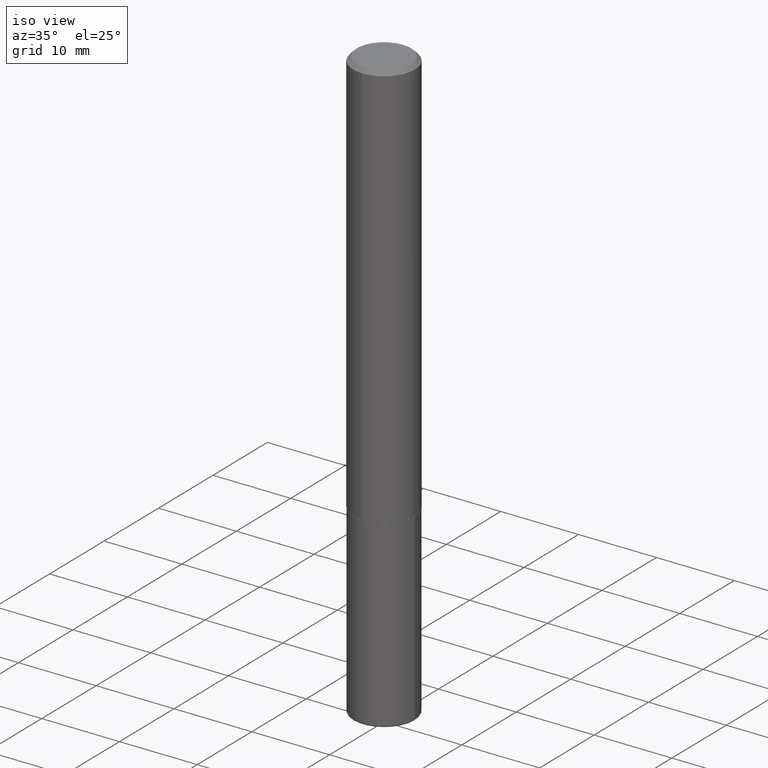
[diagram: clean part render]
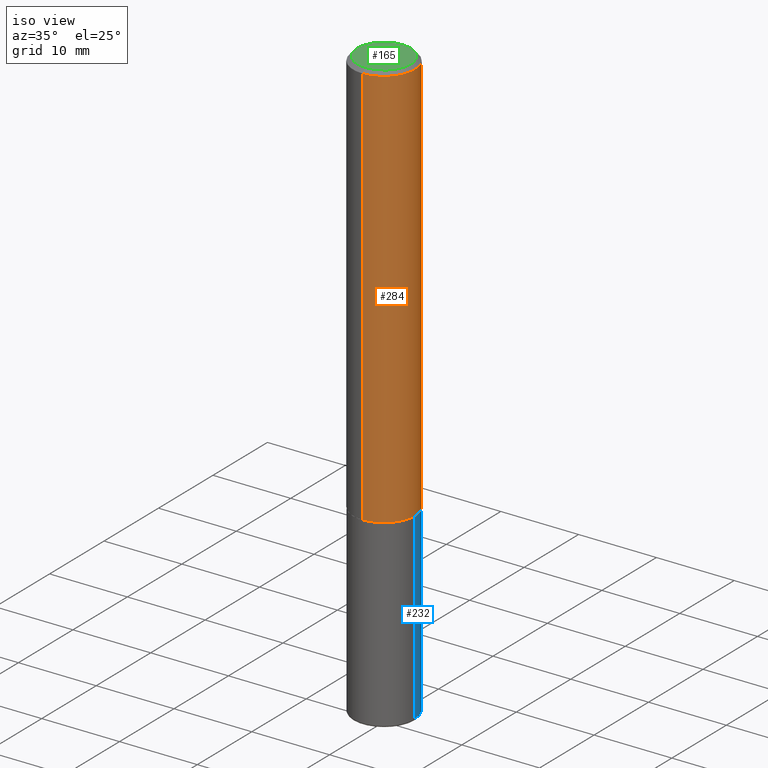
[diagram: same view with three faces highlighted in distinct colors, each labeled with its STEP entity id]
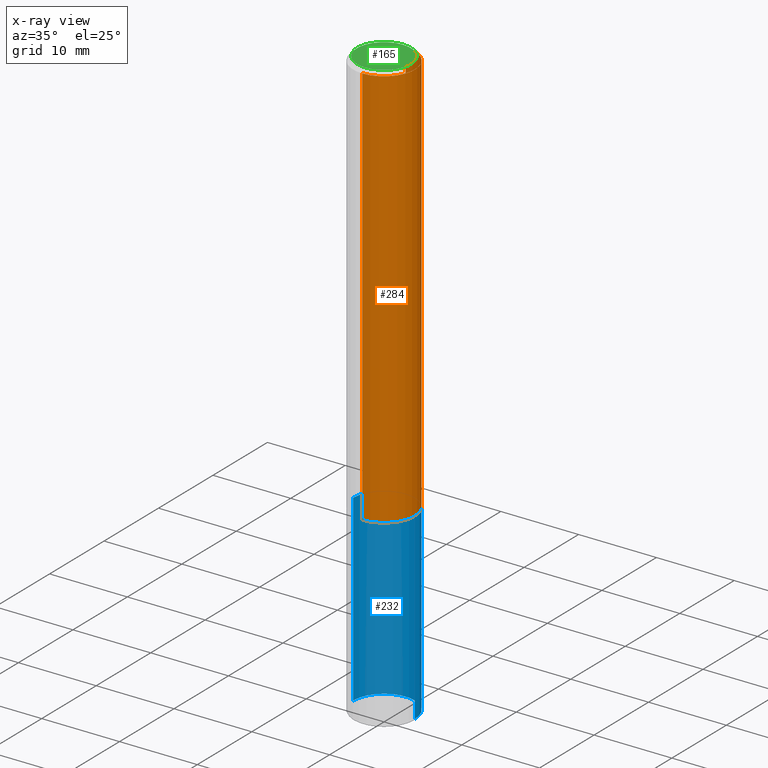
[diagram: x-ray of the same camera — body ghosted, the three highlighted faces saturated]
A machine part, iso view with three faces highlighted in distinct colors.
The next image is the same camera in x-ray (body ghosted, the three faces saturated) — at least one of them is partly hidden behind the body in this view.
Their STEP definitions:

[orange] entity #284 — the highlighted cylindrical surface (partial cylindrical patch) has radius 3.9688 mm, axis along (-0, 0, 1).
#1 = ORIENTED_EDGE ( 'NONE', *, *, #391, .T. ) ;
#15 = CARTESIAN_POINT ( 'NONE',  ( -1.091087918388479962E-15, -0.1562500000000001388, 5.456094630612559989E-16 ) ) ;
#25 = CARTESIAN_POINT ( 'NONE',  ( 1.091087918388479568E-15, 0.1562499999999999445, -0.02000000000000057981 ) ) ;
#28 = DIRECTION ( 'NONE',  ( -6.982962677686265922E-15, -1.000000000000000000, 3.496765431890250609E-15 ) ) ;
#32 = CARTESIAN_POINT ( 'NONE',  ( 1.110223024625157329E-15, 0.1562500000000001388, -5.456094630612559989E-16 ) ) ;
#37 = EDGE_CURVE ( 'NONE', #273, #378, #66, .T. ) ;
#59 = EDGE_CURVE ( 'NONE', #279, #378, #341, .T. ) ;
#62 = VECTOR ( 'NONE', #274, 39.37007874015748143 ) ;
#66 = LINE ( 'NONE', #32, #354 ) ;
#69 = DIRECTION ( 'NONE',  ( -6.982962677686265133E-15, -1.000000000000000000, 3.496765431890256920E-15 ) ) ;
#70 = CARTESIAN_POINT ( 'NONE',  ( 0.000000000000000000, 0.000000000000000000, 0.000000000000000000 ) ) ;
#77 = AXIS2_PLACEMENT_3D ( 'NONE', #372, #182, #28 ) ;
#105 = AXIS2_PLACEMENT_3D ( 'NONE', #70, #377, #264 ) ;
#123 = AXIS2_PLACEMENT_3D ( 'NONE', #227, #350, #69 ) ;
#160 = CYLINDRICAL_SURFACE ( 'NONE', #105, 0.1562500000000001388 ) ;
#175 = ORIENTED_EDGE ( 'NONE', *, *, #37, .T. ) ;
#182 = DIRECTION ( 'NONE',  ( -2.445176063107630933E-29, 3.491900563592034843E-15, 1.000000000000000000 ) ) ;
#183 = LINE ( 'NONE', #15, #62 ) ;
#185 = ORIENTED_EDGE ( 'NONE', *, *, #59, .F. ) ;
#202 = EDGE_CURVE ( 'NONE', #248, #279, #183, .T. ) ;
#219 = EDGE_LOOP ( 'NONE', ( #1, #175, #185, #343 ) ) ;
#227 = CARTESIAN_POINT ( 'NONE',  ( 4.890352126215269679E-31, -6.983801127184080238E-17, -0.02000000000000003511 ) ) ;
#235 = FACE_OUTER_BOUND ( 'NONE', #219, .T. ) ;
#248 = VERTEX_POINT ( 'NONE', #312 ) ;
#264 = DIRECTION ( 'NONE',  ( -6.982962677686265922E-15, -1.000000000000000000, 3.491900563592035238E-15 ) ) ;
#269 = CARTESIAN_POINT ( 'NONE',  ( -1.071952812151801215E-15, -0.1562500000000000833, -0.01999999999999948694 ) ) ;
#273 = VERTEX_POINT ( 'NONE', #402 ) ;
#274 = DIRECTION ( 'NONE',  ( -2.445176063107631214E-29, 3.491900563592034843E-15, 1.000000000000000000 ) ) ;
#279 = VERTEX_POINT ( 'NONE', #269 ) ;
#284 = ADVANCED_FACE ( 'NONE', ( #235 ), #160, .T. ) ;
#291 = DIRECTION ( 'NONE',  ( -2.445176063107631214E-29, 3.491900563592034843E-15, 1.000000000000000000 ) ) ;
#312 = CARTESIAN_POINT ( 'NONE',  ( -1.091087918388430659E-15, -0.1562500000000074940, -2.061499999999999666 ) ) ;
#341 = CIRCLE ( 'NONE', #123, 0.1562500000000000000 ) ;
#343 = ORIENTED_EDGE ( 'NONE', *, *, #202, .F. ) ;
#350 = DIRECTION ( 'NONE',  ( -2.445176063107630933E-29, 3.491900563592034843E-15, 1.000000000000000000 ) ) ;
#354 = VECTOR ( 'NONE', #291, 39.37007874015748143 ) ;
#372 = CARTESIAN_POINT ( 'NONE',  ( 5.040730454096381281E-29, -7.198553011844980434E-15, -2.061500000000000110 ) ) ;
#377 = DIRECTION ( 'NONE',  ( -2.445176063107630933E-29, 3.491900563592034843E-15, 1.000000000000000000 ) ) ;
#378 = VERTEX_POINT ( 'NONE', #25 ) ;
#391 = EDGE_CURVE ( 'NONE', #248, #273, #412, .T. ) ;
#402 = CARTESIAN_POINT ( 'NONE',  ( 1.110223024625183362E-15, 0.1562499999999930611, -2.061500000000000554 ) ) ;
#412 = CIRCLE ( 'NONE', #77, 0.1562500000000002776 ) ;

[blue] entity #232 — the highlighted cylindrical surface (partial cylindrical patch) has radius 3.9688 mm, axis along (-0, 0, 1).
#10 = ORIENTED_EDGE ( 'NONE', *, *, #179, .T. ) ;
#11 = CARTESIAN_POINT ( 'NONE',  ( -0.1562500000000000000, -7.710131707627340889E-15, -2.062500000000000000 ) ) ;
#12 = CIRCLE ( 'NONE', #74, 0.1562500000000000000 ) ;
#26 = VERTEX_POINT ( 'NONE', #158 ) ;
#45 = FACE_OUTER_BOUND ( 'NONE', #146, .T. ) ;
#53 = ORIENTED_EDGE ( 'NONE', *, *, #298, .F. ) ;
#57 = CYLINDRICAL_SURFACE ( 'NONE', #327, 0.1562500000000000000 ) ;
#74 = AXIS2_PLACEMENT_3D ( 'NONE', #338, #401, #270 ) ;
#87 = CARTESIAN_POINT ( 'NONE',  ( 0.1562500000000000000, -1.091087918388479174E-15, 7.619026212181150377E-30 ) ) ;
#120 = CARTESIAN_POINT ( 'NONE',  ( -0.1562500000000000000, 1.110223024625156540E-15, -7.685836078523291160E-30 ) ) ;
#127 = DIRECTION ( 'NONE',  ( -2.445468806185136597E-29, 3.491481338843145583E-15, 1.000000000000000000 ) ) ;
#132 = CARTESIAN_POINT ( 'NONE',  ( 5.043779412756844791E-29, -7.201180261363988578E-15, -2.062500000000000000 ) ) ;
#133 = CARTESIAN_POINT ( 'NONE',  ( 0.1562500000000000000, -8.292268179752468540E-15, -2.062500000000000000 ) ) ;
#135 = EDGE_CURVE ( 'NONE', #26, #282, #217, .T. ) ;
#146 = EDGE_LOOP ( 'NONE', ( #10, #150, #53, #172 ) ) ;
#148 = EDGE_CURVE ( 'NONE', #403, #151, #174, .T. ) ;
#150 = ORIENTED_EDGE ( 'NONE', *, *, #148, .T. ) ;
#151 = VERTEX_POINT ( 'NONE', #11 ) ;
#158 = CARTESIAN_POINT ( 'NONE',  ( 0.1562500000000000278, -1.153061712152948940E-14, -2.990000000000000657 ) ) ;
#172 = ORIENTED_EDGE ( 'NONE', *, *, #135, .F. ) ;
#174 = LINE ( 'NONE', #120, #352 ) ;
#176 = DIRECTION ( 'NONE',  ( -2.445468806185136877E-29, 3.491481338843145188E-15, 1.000000000000000000 ) ) ;
#179 = EDGE_CURVE ( 'NONE', #26, #403, #12, .T. ) ;
#184 = CARTESIAN_POINT ( 'NONE',  ( 0.000000000000000000, 0.000000000000000000, 0.000000000000000000 ) ) ;
#217 = LINE ( 'NONE', #87, #245 ) ;
#225 = CIRCLE ( 'NONE', #310, 0.1562500000000000000 ) ;
#232 = ADVANCED_FACE ( 'NONE', ( #45 ), #57, .T. ) ;
#245 = VECTOR ( 'NONE', #176, 39.37007874015748143 ) ;
#250 = DIRECTION ( 'NONE',  ( -2.445468806185136597E-29, 3.491481338843145583E-15, 1.000000000000000000 ) ) ;
#259 = DIRECTION ( 'NONE',  ( 1.000000000000000000, -6.982962677686269077E-15, 0.000000000000000000 ) ) ;
#270 = DIRECTION ( 'NONE',  ( 1.000000000000000000, -6.982962677686262766E-15, 0.000000000000000000 ) ) ;
#277 = CARTESIAN_POINT ( 'NONE',  ( -0.1562500000000000278, -9.329306178515851319E-15, -2.990000000000000657 ) ) ;
#280 = DIRECTION ( 'NONE',  ( -2.445468806185136877E-29, 3.491481338843145188E-15, 1.000000000000000000 ) ) ;
#282 = VERTEX_POINT ( 'NONE', #133 ) ;
#298 = EDGE_CURVE ( 'NONE', #282, #151, #225, .T. ) ;
#310 = AXIS2_PLACEMENT_3D ( 'NONE', #132, #127, #259 ) ;
#327 = AXIS2_PLACEMENT_3D ( 'NONE', #184, #250, #371 ) ;
#338 = CARTESIAN_POINT ( 'NONE',  ( 7.311951730493559366E-29, -1.043952920314100786E-14, -2.990000000000000657 ) ) ;
#352 = VECTOR ( 'NONE', #280, 39.37007874015748143 ) ;
#371 = DIRECTION ( 'NONE',  ( 1.000000000000000000, -6.982962677686266711E-15, 4.876176775795936353E-29 ) ) ;
#401 = DIRECTION ( 'NONE',  ( -2.445468806185136597E-29, 3.491481338843145583E-15, 1.000000000000000000 ) ) ;
#403 = VERTEX_POINT ( 'NONE', #277 ) ;

[green] entity #165 — the highlighted planar face has unit normal (0, -0, -1).
#3 = CARTESIAN_POINT ( 'NONE',  ( 2.190428889620163364E-45, -3.128101894001013777E-31, -8.958164292007245599E-17 ) ) ;
#21 = VERTEX_POINT ( 'NONE', #384 ) ;
#58 = CIRCLE ( 'NONE', #207, 0.1362500000000001210 ) ;
#61 = DIRECTION ( 'NONE',  ( -6.982962677686265922E-15, -1.000000000000000000, 3.491900563592034843E-15 ) ) ;
#89 = DIRECTION ( 'NONE',  ( 2.445176063107630653E-29, -3.491900563592034843E-15, -1.000000000000000000 ) ) ;
#102 = VERTEX_POINT ( 'NONE', #332 ) ;
#104 = AXIS2_PLACEMENT_3D ( 'NONE', #405, #89, #144 ) ;
#119 = CIRCLE ( 'NONE', #288, 0.1362500000000001210 ) ;
#122 = DIRECTION ( 'NONE',  ( -2.445176063107630933E-29, 3.491900563592034843E-15, 1.000000000000000000 ) ) ;
#139 = FACE_OUTER_BOUND ( 'NONE', #221, .T. ) ;
#143 = CARTESIAN_POINT ( 'NONE',  ( 2.190428889620163364E-45, -3.128101894001013777E-31, -8.958164292007245599E-17 ) ) ;
#144 = DIRECTION ( 'NONE',  ( 6.982962677686265922E-15, 1.000000000000000000, -3.491900563592034843E-15 ) ) ;
#162 = DIRECTION ( 'NONE',  ( -6.982962677686265922E-15, -1.000000000000000000, 3.491900563592034843E-15 ) ) ;
#165 = ADVANCED_FACE ( 'NONE', ( #139 ), #276, .F. ) ;
#207 = AXIS2_PLACEMENT_3D ( 'NONE', #3, #122, #61 ) ;
#208 = ORIENTED_EDGE ( 'NONE', *, *, #340, .T. ) ;
#213 = EDGE_CURVE ( 'NONE', #102, #21, #119, .T. ) ;
#221 = EDGE_LOOP ( 'NONE', ( #380, #208 ) ) ;
#276 = PLANE ( 'NONE',  #104 ) ;
#288 = AXIS2_PLACEMENT_3D ( 'NONE', #143, #400, #162 ) ;
#332 = CARTESIAN_POINT ( 'NONE',  ( 1.021258291611617059E-15, 0.1362500000000001210, -5.653530947094876156E-16 ) ) ;
#340 = EDGE_CURVE ( 'NONE', #21, #102, #58, .T. ) ;
#380 = ORIENTED_EDGE ( 'NONE', *, *, #213, .T. ) ;
#384 = CARTESIAN_POINT ( 'NONE',  ( -1.003347832174086672E-15, -0.1362500000000001210, 3.861898088693426789E-16 ) ) ;
#400 = DIRECTION ( 'NONE',  ( -2.445176063107630933E-29, 3.491900563592034843E-15, 1.000000000000000000 ) ) ;
#405 = CARTESIAN_POINT ( 'NONE',  ( 9.514286648347545493E-16, 0.1362500000000001210, -5.205622732494513937E-16 ) ) ;